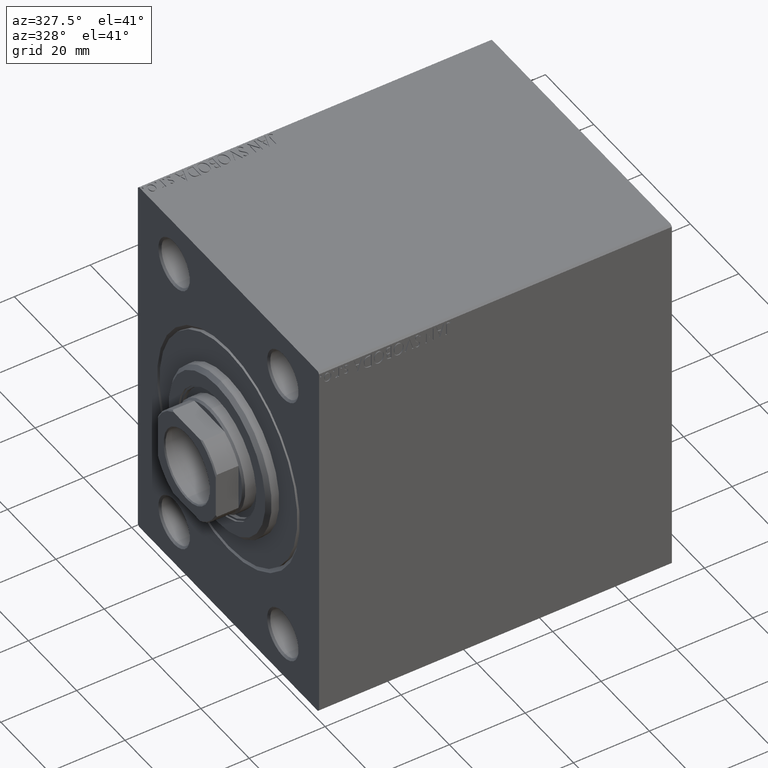
[diagram: clean part render]
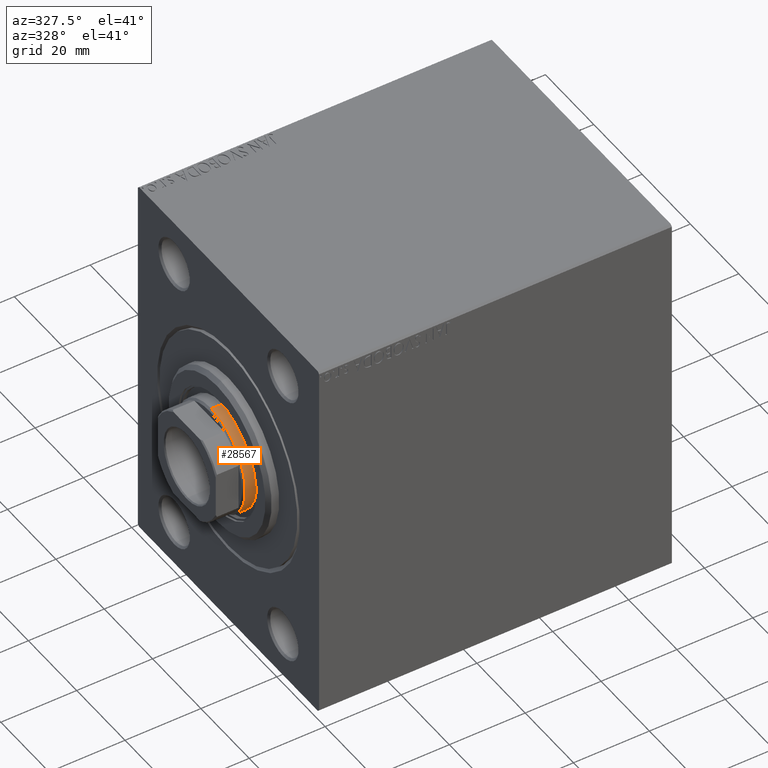
[diagram: same view with one face highlighted and labeled with its STEP entity id]
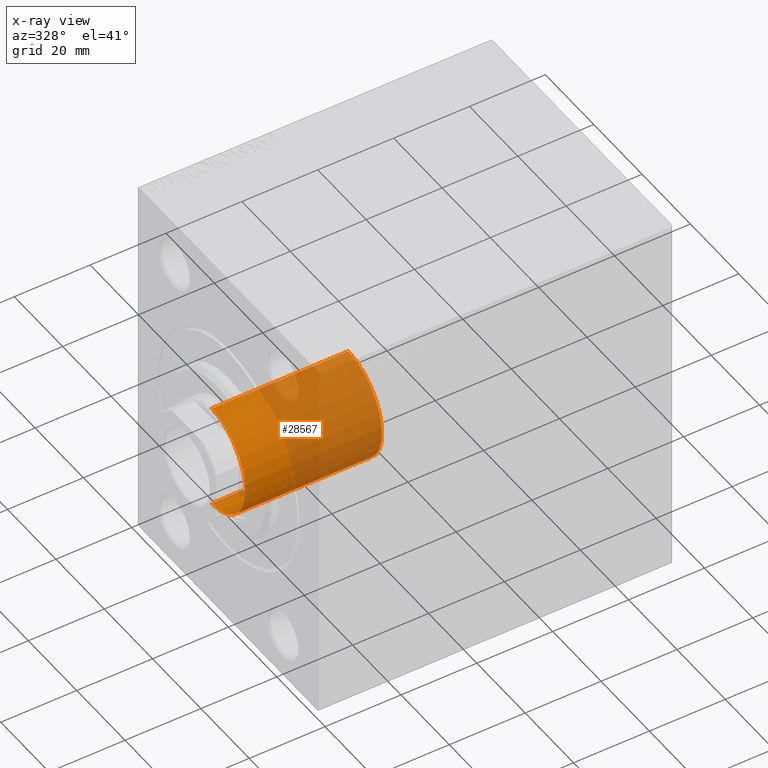
[diagram: x-ray of the same camera — body ghosted, the highlighted face saturated]
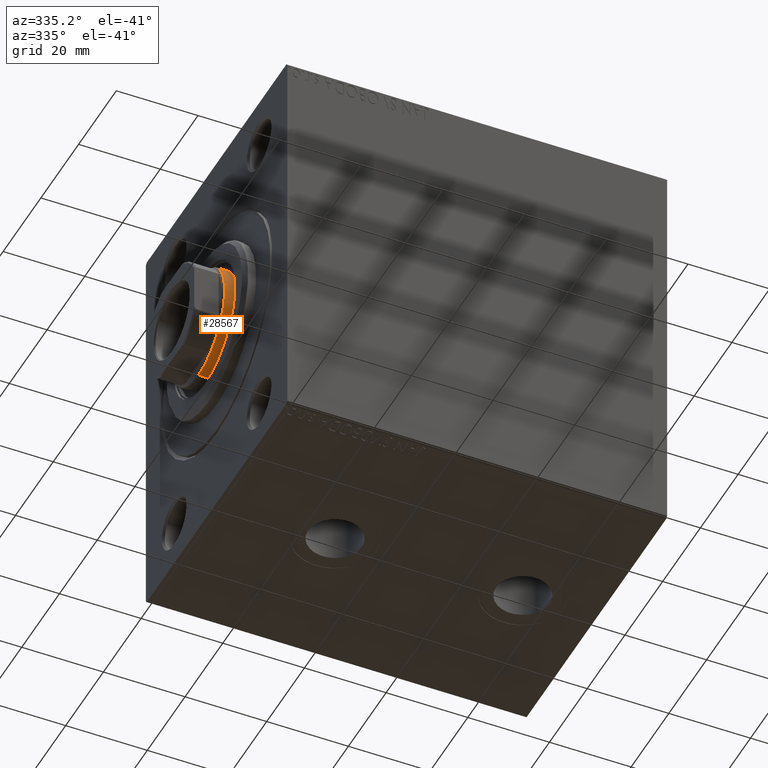
[diagram: same view with one face highlighted and labeled with its STEP entity id]
A machine part, auxiliary view. The second image highlights one B-rep face of the part: STEP entity #28567.
The next image is the same camera in x-ray: the body ghosted, the highlighted face saturated — about 65% of this face is hidden behind the body in this view.
A second angle (auxiliary view) of the same face is appended — the face is thin or edge-on in the first view.
In plain terms, the highlighted cylindrical surface (partial cylindrical patch) has radius 14 mm, axis along (1, -0, -0).
Its self-contained STEP definition (entity closure, byte-faithful):
#1399 = FACE_OUTER_BOUND ( 'NONE', #24684, .T. ) ;
#1457 = VECTOR ( 'NONE', #17669, 1000.000000000000000 ) ;
#1832 = VERTEX_POINT ( 'NONE', #2218 ) ;
#2158 = ORIENTED_EDGE ( 'NONE', *, *, #39474, .F. ) ;
#2218 = CARTESIAN_POINT ( 'NONE',  ( -14.00000000000000178, 0.000000000000000000, 55.49999999999999289 ) ) ;
#2846 = VERTEX_POINT ( 'NONE', #17938 ) ;
#3480 = ORIENTED_EDGE ( 'NONE', *, *, #41339, .T. ) ;
#4406 = DIRECTION ( 'NONE',  ( -0.000000000000000000, -0.000000000000000000, -1.000000000000000000 ) ) ;
#4559 = CARTESIAN_POINT ( 'NONE',  ( 0.000000000000000000, 0.000000000000000000, 55.99999999999999289 ) ) ;
#6469 = CARTESIAN_POINT ( 'NONE',  ( 0.000000000000000000, 0.000000000000000000, 19.39999999999999858 ) ) ;
#7288 = CIRCLE ( 'NONE', #18763, 14.00000000000000178 ) ;
#7545 = LINE ( 'NONE', #10481, #1457 ) ;
#10070 = DIRECTION ( 'NONE',  ( 0.000000000000000000, 0.000000000000000000, 1.000000000000000000 ) ) ;
#10481 = CARTESIAN_POINT ( 'NONE',  ( -14.00000000000000178, 0.000000000000000000, 55.99999999999999289 ) ) ;
#10714 = CARTESIAN_POINT ( 'NONE',  ( 14.00000000000000178, 1.714505518806294835E-15, 55.99999999999999289 ) ) ;
#11615 = CARTESIAN_POINT ( 'NONE',  ( 0.000000000000000000, 0.000000000000000000, 55.49999999999999289 ) ) ;
#15655 = DIRECTION ( 'NONE',  ( 0.000000000000000000, 0.000000000000000000, -1.000000000000000000 ) ) ;
#15857 = AXIS2_PLACEMENT_3D ( 'NONE', #4559, #39367, #42498 ) ;
#17669 = DIRECTION ( 'NONE',  ( -0.000000000000000000, -0.000000000000000000, -1.000000000000000000 ) ) ;
#17938 = CARTESIAN_POINT ( 'NONE',  ( 14.00000000000000178, 1.714505518806294835E-15, 55.49999999999999289 ) ) ;
#18576 = CARTESIAN_POINT ( 'NONE',  ( 14.00000000000000178, 1.714505518806294835E-15, 19.39999999999999858 ) ) ;
#18763 = AXIS2_PLACEMENT_3D ( 'NONE', #11615, #15655, #28906 ) ;
#21059 = CIRCLE ( 'NONE', #36129, 14.00000000000000178 ) ;
#21484 = LINE ( 'NONE', #10714, #42514 ) ;
#23983 = DIRECTION ( 'NONE',  ( 1.000000000000000000, 0.000000000000000000, 0.000000000000000000 ) ) ;
#24684 = EDGE_LOOP ( 'NONE', ( #2158, #36306, #43879, #3480 ) ) ;
#28207 = EDGE_CURVE ( 'NONE', #1832, #39440, #7545, .T. ) ;
#28567 = ADVANCED_FACE ( 'NONE', ( #1399 ), #31750, .T. ) ;
#28906 = DIRECTION ( 'NONE',  ( 1.000000000000000000, 0.000000000000000000, 0.000000000000000000 ) ) ;
#31577 = EDGE_CURVE ( 'NONE', #2846, #1832, #7288, .T. ) ;
#31614 = VERTEX_POINT ( 'NONE', #18576 ) ;
#31750 = CYLINDRICAL_SURFACE ( 'NONE', #15857, 14.00000000000000178 ) ;
#36129 = AXIS2_PLACEMENT_3D ( 'NONE', #6469, #10070, #23983 ) ;
#36306 = ORIENTED_EDGE ( 'NONE', *, *, #31577, .T. ) ;
#39367 = DIRECTION ( 'NONE',  ( -0.000000000000000000, -0.000000000000000000, -1.000000000000000000 ) ) ;
#39440 = VERTEX_POINT ( 'NONE', #43724 ) ;
#39474 = EDGE_CURVE ( 'NONE', #2846, #31614, #21484, .T. ) ;
#41339 = EDGE_CURVE ( 'NONE', #39440, #31614, #21059, .T. ) ;
#42498 = DIRECTION ( 'NONE',  ( -1.000000000000000000, 0.000000000000000000, 0.000000000000000000 ) ) ;
#42514 = VECTOR ( 'NONE', #4406, 1000.000000000000000 ) ;
#43724 = CARTESIAN_POINT ( 'NONE',  ( -14.00000000000000178, 0.000000000000000000, 19.39999999999999858 ) ) ;
#43879 = ORIENTED_EDGE ( 'NONE', *, *, #28207, .T. ) ;